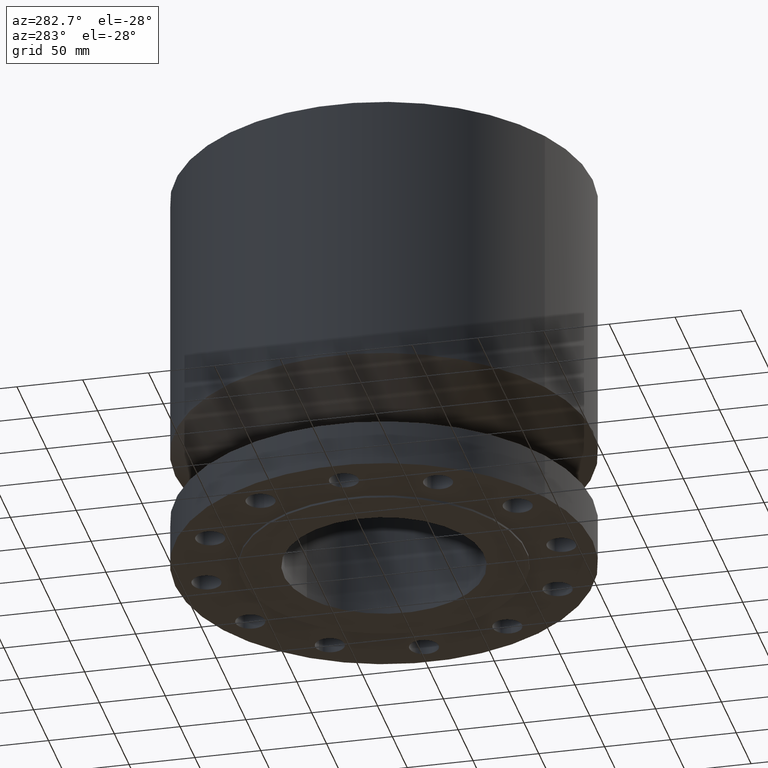
[diagram: clean part render]
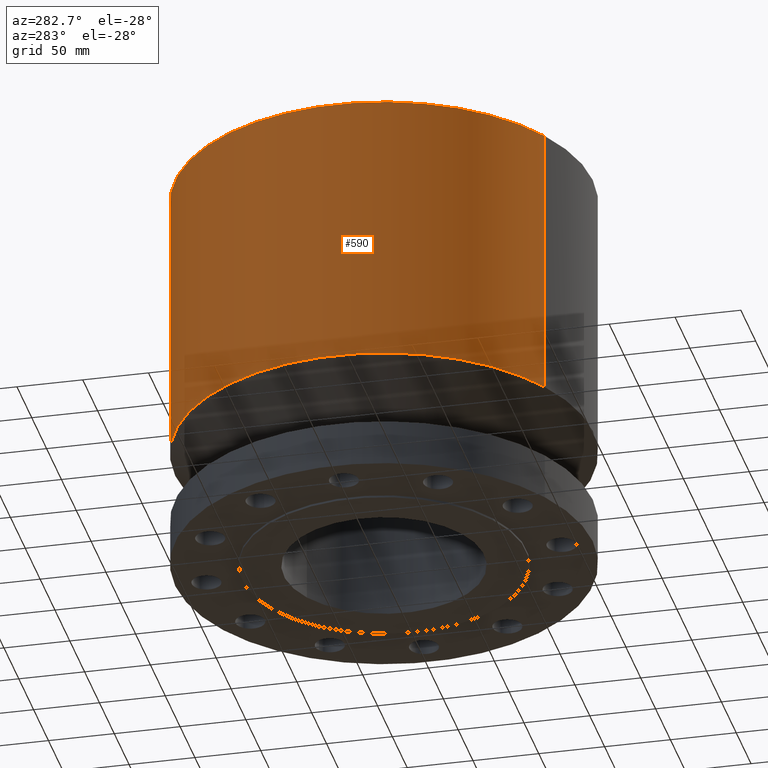
[diagram: same view with one face highlighted and labeled with its STEP entity id]
A machine part, auxiliary view. The second image highlights one B-rep face of the part: STEP entity #590.
In plain terms, the highlighted cylindrical surface (partial cylindrical patch) has radius 158.75 mm, axis along (0, 0, -1).
Its self-contained STEP definition (entity closure, byte-faithful):
#327=AXIS2_PLACEMENT_3D('Cylinder Axis2P3D',#324,#325,#326) ;
#543=AXIS2_PLACEMENT_3D('Circle Axis2P3D',#541,#542,$) ;
#581=AXIS2_PLACEMENT_3D('Circle Axis2P3D',#579,#580,$) ;
#324=CARTESIAN_POINT('Axis2P3D Location',(0.,0.,5.93750000002)) ;
#519=CARTESIAN_POINT('Vertex',(2.99640961629,5.48489101184,3.64189708954)) ;
#526=CARTESIAN_POINT('Vertex',(-2.99640961629,-5.48489101184,3.64189708954)) ;
#541=CARTESIAN_POINT('Axis2P3D Location',(0.,0.,3.64189708954)) ;
#553=CARTESIAN_POINT('Line Origine',(2.99640961629,5.48489101184,7.78969854479)) ;
#557=CARTESIAN_POINT('Vertex',(2.99640961629,5.48489101184,11.9375)) ;
#564=CARTESIAN_POINT('Vertex',(-2.99640961629,-5.48489101184,11.9375)) ;
#567=CARTESIAN_POINT('Line Origine',(-2.99640961629,-5.48489101184,7.78969854479)) ;
#579=CARTESIAN_POINT('Axis2P3D Location',(0.,0.,11.9375)) ;
#325=DIRECTION('Axis2P3D Direction',(0.,0.,-0.0393700787402)) ;
#326=DIRECTION('Axis2P3D XDirection',(-0.0188750212049,-0.0345504945626,0.)) ;
#542=DIRECTION('Axis2P3D Direction',(-0.,0.,0.0393700787402)) ;
#554=DIRECTION('Vector Direction',(0.,0.,-0.0393700787402)) ;
#568=DIRECTION('Vector Direction',(0.,0.,-0.0393700787402)) ;
#580=DIRECTION('Axis2P3D Direction',(0.,0.,-0.0393700787402)) ;
#555=VECTOR('Line Direction',#554,0.0393700787402) ;
#569=VECTOR('Line Direction',#568,0.0393700787402) ;
#585=ORIENTED_EDGE('',*,*,#545,.F.) ;
#586=ORIENTED_EDGE('',*,*,#571,.T.) ;
#587=ORIENTED_EDGE('',*,*,#583,.T.) ;
#588=ORIENTED_EDGE('',*,*,#559,.F.) ;
#590=ADVANCED_FACE('PartBody',(#589),#328,.T.) ;
#544=CIRCLE('generated circle',#543,6.25000000002) ;
#582=CIRCLE('generated circle',#581,6.25000000003) ;
#328=CYLINDRICAL_SURFACE('generated cylinder',#327,6.25000000003) ;
#545=EDGE_CURVE('',#527,#520,#544,.F.) ;
#559=EDGE_CURVE('',#520,#558,#556,.F.) ;
#571=EDGE_CURVE('',#527,#565,#570,.F.) ;
#583=EDGE_CURVE('',#565,#558,#582,.T.) ;
#584=EDGE_LOOP('',(#585,#586,#587,#588)) ;
#589=FACE_OUTER_BOUND('',#584,.T.) ;
#556=LINE('Line',#553,#555) ;
#570=LINE('Line',#567,#569) ;
#520=VERTEX_POINT('',#519) ;
#527=VERTEX_POINT('',#526) ;
#558=VERTEX_POINT('',#557) ;
#565=VERTEX_POINT('',#564) ;